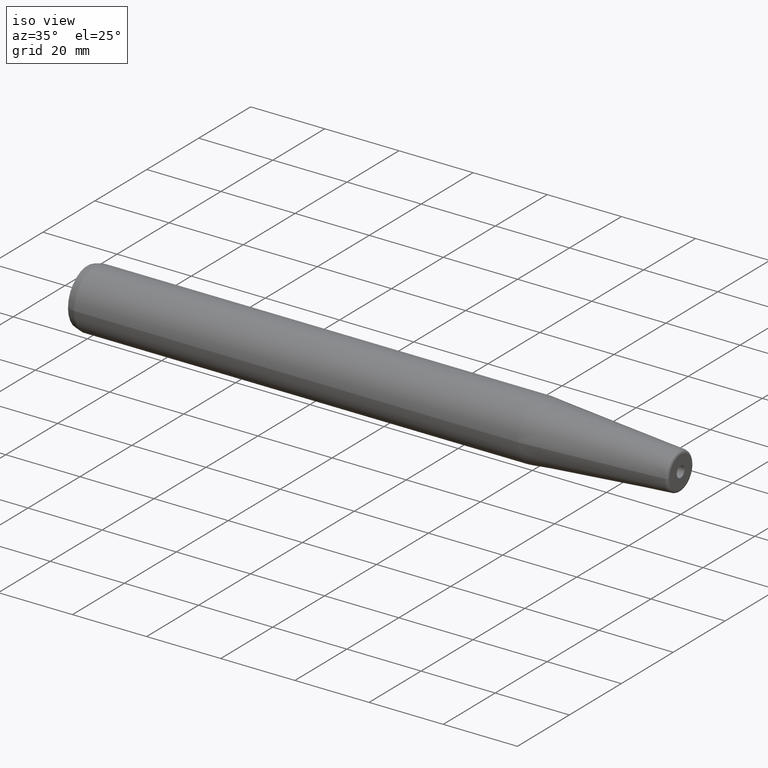
[diagram: clean part render]
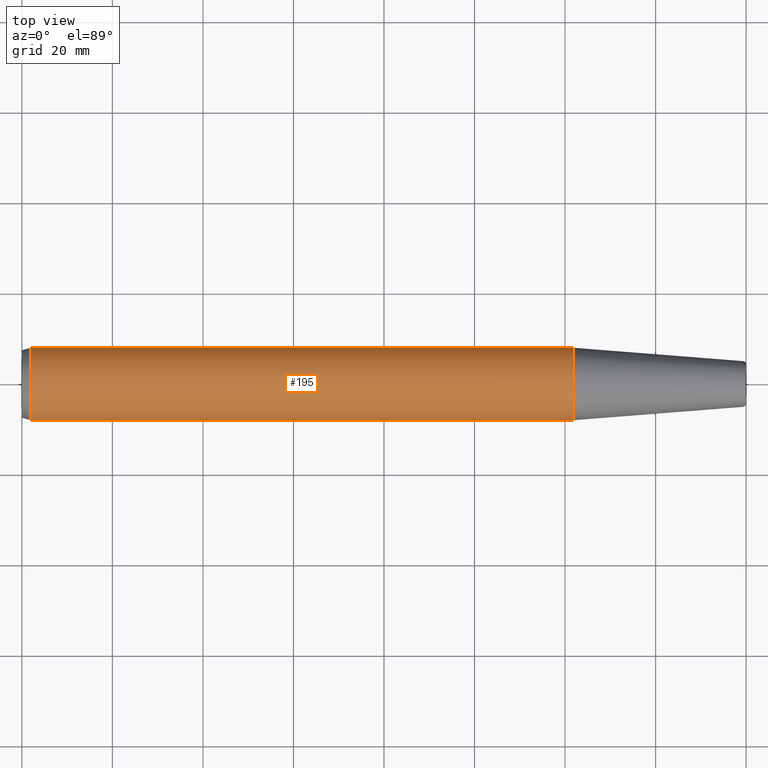
[diagram: tour spotlight — one face highlighted and labeled with its STEP entity id]
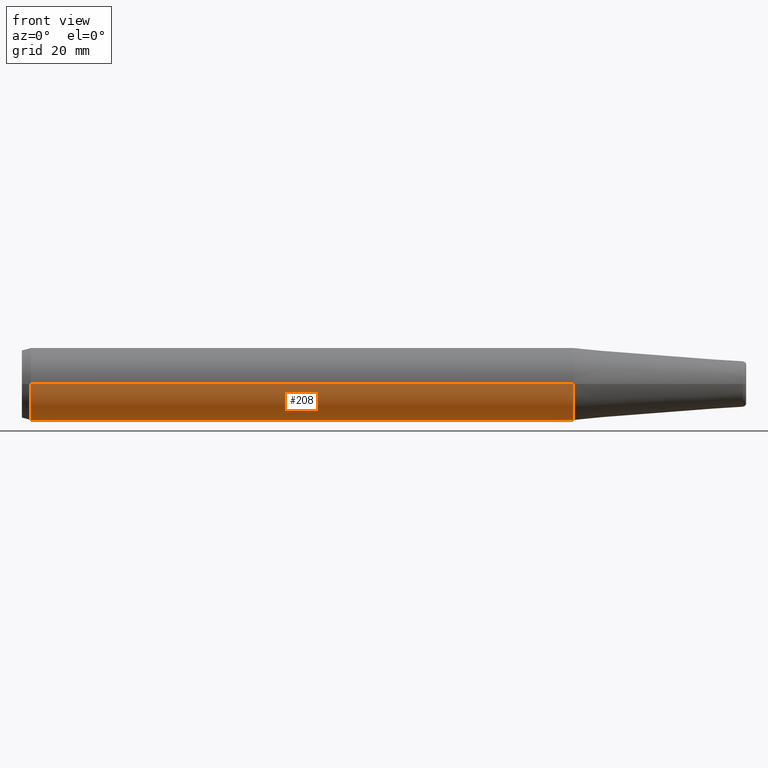
[diagram: tour spotlight — one face highlighted and labeled with its STEP entity id]
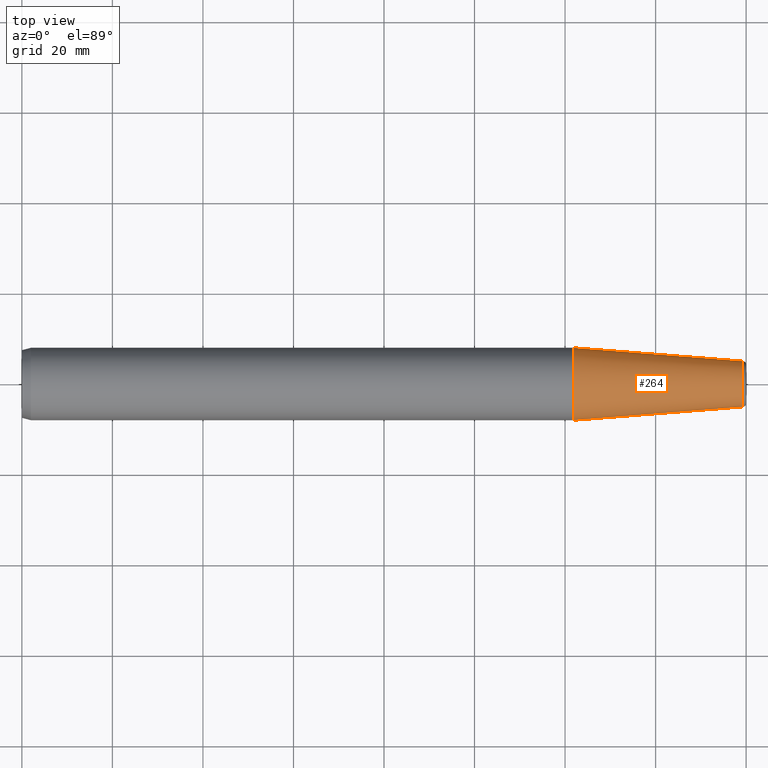
[diagram: tour spotlight — one face highlighted and labeled with its STEP entity id]
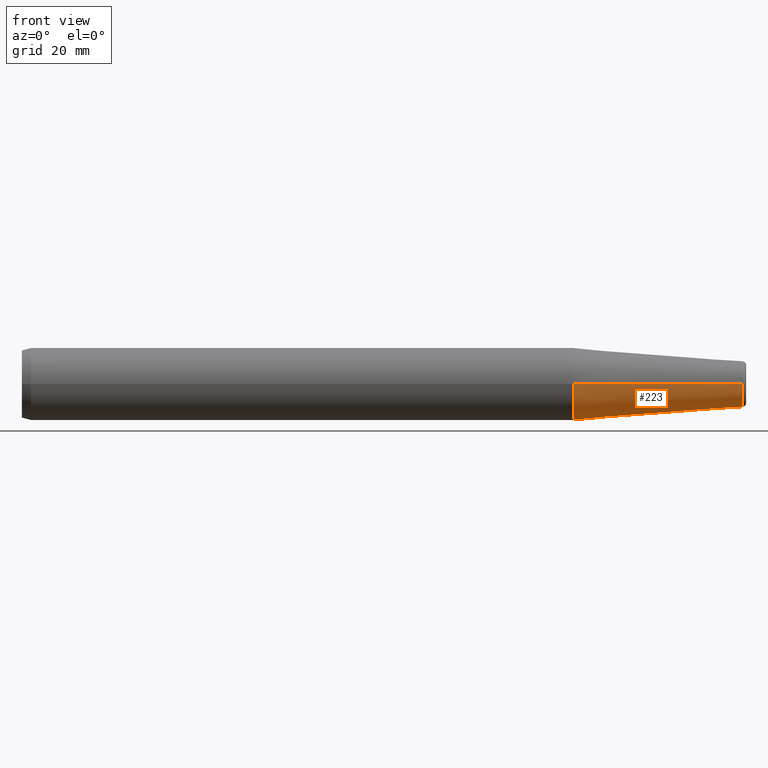
[diagram: tour spotlight — one face highlighted and labeled with its STEP entity id]
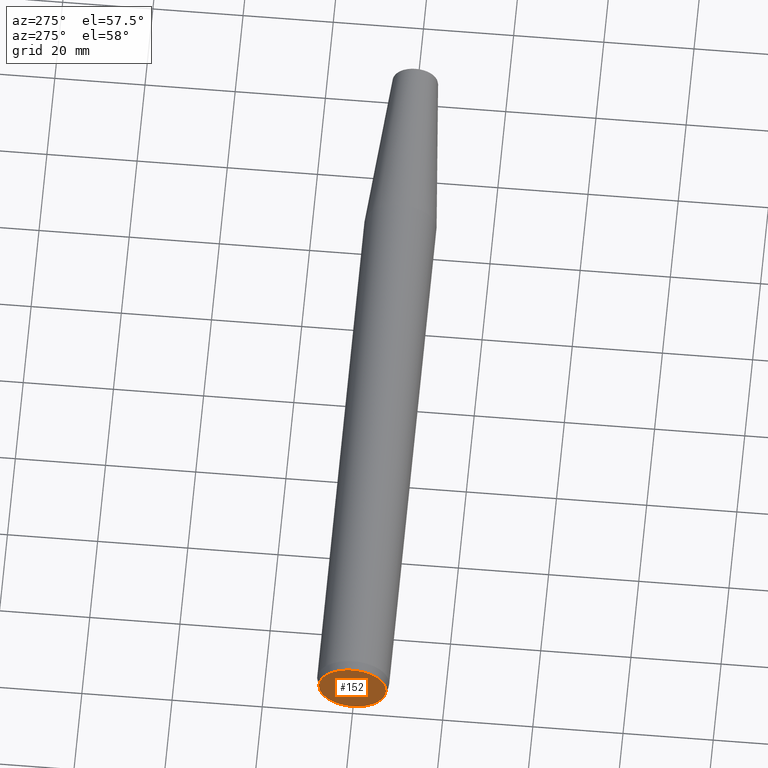
[diagram: tour spotlight — one face highlighted and labeled with its STEP entity id]
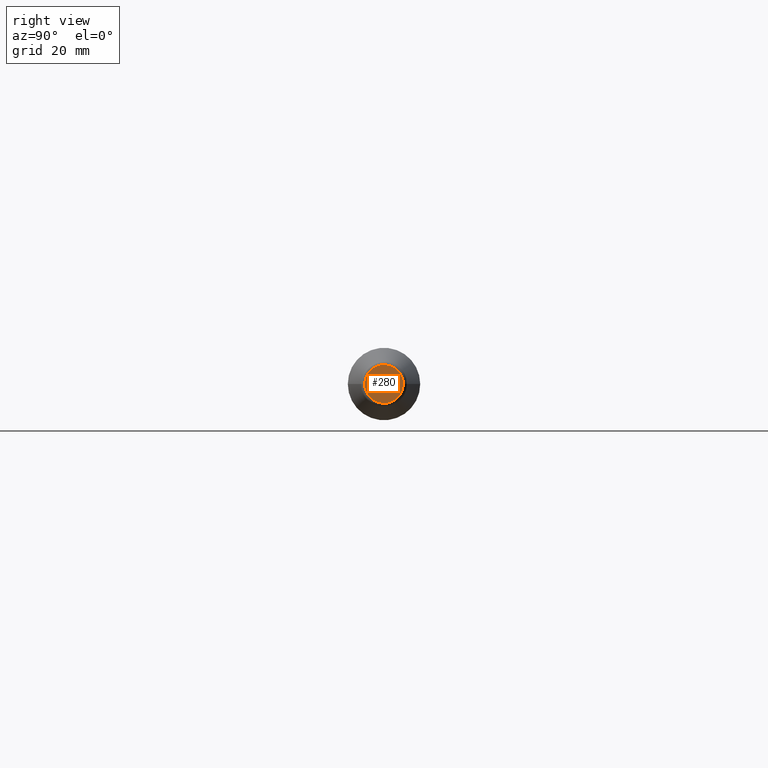
[diagram: tour spotlight — one face highlighted and labeled with its STEP entity id]
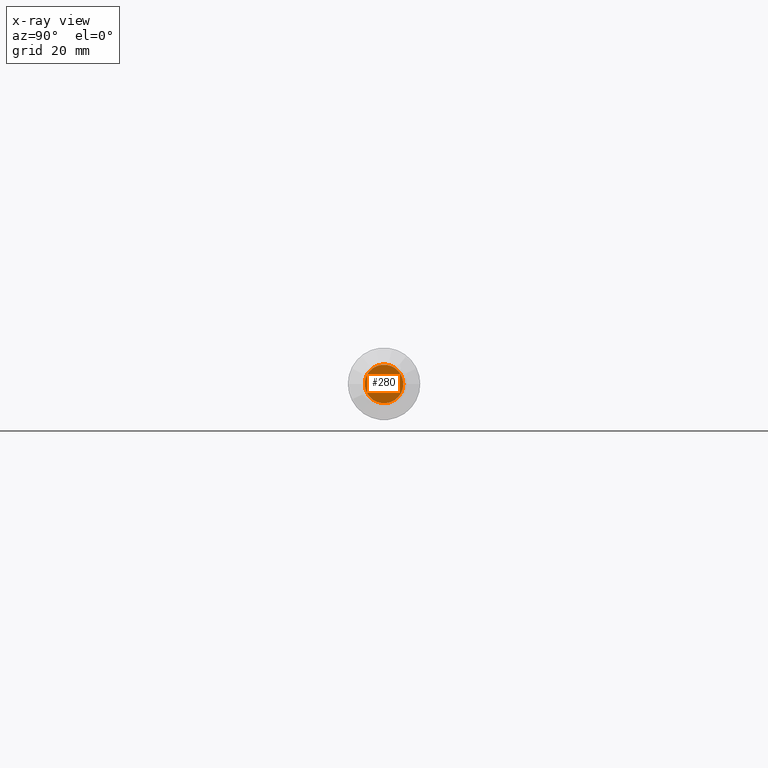
[diagram: x-ray of the same camera — body ghosted, this tour face saturated]
A machine part: a face-by-face anatomy tour. The part has 13 B-rep faces; the first image is the clean iso view, then the 6 largest visible faces are spotlighted one at a time (largest first), each with its STEP entity span.

Face 1 — top view, entity #195. In plain terms, the highlighted cylindrical surface (edge-blend (fillet) strip) has radius 8 mm, axis along (1, 0, 0).
Definition (entity closure, byte-faithful):
#19=CARTESIAN_POINT('',(2.E0,0.E0,0.E0));
#20=DIRECTION('',(-1.E0,0.E0,0.E0));
#21=DIRECTION('',(0.E0,-1.E0,0.E0));
#22=AXIS2_PLACEMENT_3D('',#19,#20,#21);
#24=CARTESIAN_POINT('',(1.218813857915E2,0.E0,0.E0));
#25=DIRECTION('',(1.E0,0.E0,0.E0));
#26=DIRECTION('',(0.E0,1.E0,0.E0));
#27=AXIS2_PLACEMENT_3D('',#24,#25,#26);
#34=DIRECTION('',(-1.E0,1.276256442345E-12,1.520143025202E-11));
#35=VECTOR('',#34,1.198813857920E2);
#36=CARTESIAN_POINT('',(1.218813857915E2,-8.E0,0.E0));
#37=LINE('',#36,#35);
#43=DIRECTION('',(-1.E0,-1.276256442345E-12,-1.520143599952E-11));
#44=VECTOR('',#43,1.198813857920E2);
#45=CARTESIAN_POINT('',(1.218813857915E2,8.E0,0.E0));
#46=LINE('',#45,#44);
#113=CARTESIAN_POINT('',(1.218813857915E2,8.E0,0.E0));
#114=CARTESIAN_POINT('',(1.218813857915E2,-8.E0,0.E0));
#115=VERTEX_POINT('',#113);
#116=VERTEX_POINT('',#114);
#129=CARTESIAN_POINT('',(2.E0,8.E0,0.E0));
#130=CARTESIAN_POINT('',(2.E0,-8.E0,0.E0));
#131=VERTEX_POINT('',#129);
#132=VERTEX_POINT('',#130);
#181=CARTESIAN_POINT('',(-8.E0,0.E0,0.E0));
#182=DIRECTION('',(1.E0,0.E0,0.E0));
#183=DIRECTION('',(0.E0,-1.E0,0.E0));
#184=AXIS2_PLACEMENT_3D('',#181,#182,#183);
#185=CYLINDRICAL_SURFACE('',#184,8.E0);
#186=ORIENTED_EDGE('',*,*,#175,.T.);
#188=ORIENTED_EDGE('',*,*,#187,.F.);
#190=ORIENTED_EDGE('',*,*,#189,.T.);
#192=ORIENTED_EDGE('',*,*,#191,.T.);
#193=EDGE_LOOP('',(#186,#188,#190,#192));
#194=FACE_OUTER_BOUND('',#193,.F.);
#195=ADVANCED_FACE('',(#194),#185,.T.);
#23=CIRCLE('',#22,8.E0);
#28=CIRCLE('',#27,8.E0);
#175=EDGE_CURVE('',#132,#131,#23,.T.);
#187=EDGE_CURVE('',#115,#131,#46,.T.);
#189=EDGE_CURVE('',#115,#116,#28,.T.);
#191=EDGE_CURVE('',#116,#132,#37,.T.);

Face 2 — front view, entity #208. In plain terms, the highlighted cylindrical surface (edge-blend (fillet) strip) has radius 8 mm, axis along (1, 0, 0).
Definition (entity closure, byte-faithful):
#29=CARTESIAN_POINT('',(2.E0,0.E0,0.E0));
#30=DIRECTION('',(-1.E0,0.E0,0.E0));
#31=DIRECTION('',(0.E0,1.E0,0.E0));
#32=AXIS2_PLACEMENT_3D('',#29,#30,#31);
#34=DIRECTION('',(-1.E0,1.276256442345E-12,1.520143025202E-11));
#35=VECTOR('',#34,1.198813857920E2);
#36=CARTESIAN_POINT('',(1.218813857915E2,-8.E0,0.E0));
#37=LINE('',#36,#35);
#38=CARTESIAN_POINT('',(1.218813857915E2,0.E0,0.E0));
#39=DIRECTION('',(-1.E0,0.E0,0.E0));
#40=DIRECTION('',(0.E0,1.E0,0.E0));
#41=AXIS2_PLACEMENT_3D('',#38,#39,#40);
#43=DIRECTION('',(-1.E0,-1.276256442345E-12,-1.520143599952E-11));
#44=VECTOR('',#43,1.198813857920E2);
#45=CARTESIAN_POINT('',(1.218813857915E2,8.E0,0.E0));
#46=LINE('',#45,#44);
#113=CARTESIAN_POINT('',(1.218813857915E2,8.E0,0.E0));
#114=CARTESIAN_POINT('',(1.218813857915E2,-8.E0,0.E0));
#115=VERTEX_POINT('',#113);
#116=VERTEX_POINT('',#114);
#129=CARTESIAN_POINT('',(2.E0,8.E0,0.E0));
#130=CARTESIAN_POINT('',(2.E0,-8.E0,0.E0));
#131=VERTEX_POINT('',#129);
#132=VERTEX_POINT('',#130);
#196=CARTESIAN_POINT('',(-8.E0,0.E0,0.E0));
#197=DIRECTION('',(1.E0,0.E0,0.E0));
#198=DIRECTION('',(0.E0,-1.E0,0.E0));
#199=AXIS2_PLACEMENT_3D('',#196,#197,#198);
#200=CYLINDRICAL_SURFACE('',#199,8.E0);
#201=ORIENTED_EDGE('',*,*,#161,.T.);
#202=ORIENTED_EDGE('',*,*,#191,.F.);
#204=ORIENTED_EDGE('',*,*,#203,.F.);
#205=ORIENTED_EDGE('',*,*,#187,.T.);
#206=EDGE_LOOP('',(#201,#202,#204,#205));
#207=FACE_OUTER_BOUND('',#206,.F.);
#208=ADVANCED_FACE('',(#207),#200,.T.);
#33=CIRCLE('',#32,8.E0);
#42=CIRCLE('',#41,8.E0);
#161=EDGE_CURVE('',#131,#132,#33,.T.);
#187=EDGE_CURVE('',#115,#131,#46,.T.);
#191=EDGE_CURVE('',#116,#132,#37,.T.);
#203=EDGE_CURVE('',#115,#116,#42,.T.);

Face 3 — top view, entity #264. In plain terms, the highlighted conical surface has half-angle 4.5 deg.
Definition (entity closure, byte-faithful):
#24=CARTESIAN_POINT('',(1.218813857915E2,0.E0,0.E0));
#25=DIRECTION('',(1.E0,0.E0,0.E0));
#26=DIRECTION('',(0.E0,1.E0,0.E0));
#27=AXIS2_PLACEMENT_3D('',#24,#25,#26);
#52=DIRECTION('',(-9.969173337331E-1,7.845909572784E-2,7.746510072684E-13));
#53=VECTOR('',#52,3.749697213622E1);
#54=CARTESIAN_POINT('',(1.592627672766E2,5.058021473660E0,-2.904608751740E-11));
#55=LINE('',#54,#53);
#56=DIRECTION('',(-9.969173337331E-1,-7.845909572784E-2,-7.745870130500E-13));
#57=VECTOR('',#56,3.749697213622E1);
#58=CARTESIAN_POINT('',(1.592627672766E2,-5.058021473660E0,2.904368792798E-11));
#59=LINE('',#58,#57);
#70=CARTESIAN_POINT('',(1.592627672766E2,0.E0,0.E0));
#71=DIRECTION('',(-1.E0,0.E0,0.E0));
#72=DIRECTION('',(0.E0,-1.E0,0.E0));
#73=AXIS2_PLACEMENT_3D('',#70,#71,#72);
#113=CARTESIAN_POINT('',(1.218813857915E2,8.E0,0.E0));
#114=CARTESIAN_POINT('',(1.218813857915E2,-8.E0,0.E0));
#115=VERTEX_POINT('',#113);
#116=VERTEX_POINT('',#114);
#133=CARTESIAN_POINT('',(1.592627672766E2,5.058021473660E0,0.E0));
#134=CARTESIAN_POINT('',(1.592627672766E2,-5.058021473660E0,0.E0));
#135=VERTEX_POINT('',#133);
#136=VERTEX_POINT('',#134);
#253=CARTESIAN_POINT('',(1.405720765340E2,0.E0,0.E0));
#254=DIRECTION('',(-1.E0,0.E0,0.E0));
#255=DIRECTION('',(0.E0,1.E0,0.E0));
#256=AXIS2_PLACEMENT_3D('',#253,#254,#255);
#257=CONICAL_SURFACE('',#256,6.529010736830E0,4.5E0);
#258=ORIENTED_EDGE('',*,*,#244,.F.);
#259=ORIENTED_EDGE('',*,*,#219,.T.);
#260=ORIENTED_EDGE('',*,*,#189,.F.);
#261=ORIENTED_EDGE('',*,*,#216,.F.);
#262=EDGE_LOOP('',(#258,#259,#260,#261));
#263=FACE_OUTER_BOUND('',#262,.F.);
#264=ADVANCED_FACE('',(#263),#257,.T.);
#28=CIRCLE('',#27,8.E0);
#74=CIRCLE('',#73,5.058021473660E0);
#189=EDGE_CURVE('',#115,#116,#28,.T.);
#216=EDGE_CURVE('',#135,#115,#55,.T.);
#219=EDGE_CURVE('',#136,#116,#59,.T.);
#244=EDGE_CURVE('',#136,#135,#74,.T.);

Face 4 — front view, entity #223. In plain terms, the highlighted conical surface has half-angle 4.5 deg.
Definition (entity closure, byte-faithful):
#38=CARTESIAN_POINT('',(1.218813857915E2,0.E0,0.E0));
#39=DIRECTION('',(-1.E0,0.E0,0.E0));
#40=DIRECTION('',(0.E0,1.E0,0.E0));
#41=AXIS2_PLACEMENT_3D('',#38,#39,#40);
#47=CARTESIAN_POINT('',(1.592627672766E2,0.E0,0.E0));
#48=DIRECTION('',(-1.E0,0.E0,0.E0));
#49=DIRECTION('',(0.E0,1.E0,0.E0));
#50=AXIS2_PLACEMENT_3D('',#47,#48,#49);
#52=DIRECTION('',(-9.969173337331E-1,7.845909572784E-2,7.746510072684E-13));
#53=VECTOR('',#52,3.749697213622E1);
#54=CARTESIAN_POINT('',(1.592627672766E2,5.058021473660E0,-2.904608751740E-11));
#55=LINE('',#54,#53);
#56=DIRECTION('',(-9.969173337331E-1,-7.845909572784E-2,-7.745870130500E-13));
#57=VECTOR('',#56,3.749697213622E1);
#58=CARTESIAN_POINT('',(1.592627672766E2,-5.058021473660E0,2.904368792798E-11));
#59=LINE('',#58,#57);
#113=CARTESIAN_POINT('',(1.218813857915E2,8.E0,0.E0));
#114=CARTESIAN_POINT('',(1.218813857915E2,-8.E0,0.E0));
#115=VERTEX_POINT('',#113);
#116=VERTEX_POINT('',#114);
#133=CARTESIAN_POINT('',(1.592627672766E2,5.058021473660E0,0.E0));
#134=CARTESIAN_POINT('',(1.592627672766E2,-5.058021473660E0,0.E0));
#135=VERTEX_POINT('',#133);
#136=VERTEX_POINT('',#134);
#209=CARTESIAN_POINT('',(1.405720765340E2,0.E0,0.E0));
#210=DIRECTION('',(-1.E0,0.E0,0.E0));
#211=DIRECTION('',(0.E0,1.E0,0.E0));
#212=AXIS2_PLACEMENT_3D('',#209,#210,#211);
#213=CONICAL_SURFACE('',#212,6.529010736830E0,4.5E0);
#215=ORIENTED_EDGE('',*,*,#214,.F.);
#217=ORIENTED_EDGE('',*,*,#216,.T.);
#218=ORIENTED_EDGE('',*,*,#203,.T.);
#220=ORIENTED_EDGE('',*,*,#219,.F.);
#221=EDGE_LOOP('',(#215,#217,#218,#220));
#222=FACE_OUTER_BOUND('',#221,.F.);
#223=ADVANCED_FACE('',(#222),#213,.T.);
#42=CIRCLE('',#41,8.E0);
#51=CIRCLE('',#50,5.058021473660E0);
#203=EDGE_CURVE('',#115,#116,#42,.T.);
#214=EDGE_CURVE('',#135,#136,#51,.T.);
#216=EDGE_CURVE('',#135,#115,#55,.T.);
#219=EDGE_CURVE('',#136,#116,#59,.T.);

Face 5 — auxiliary view, entity #152. In plain terms, the highlighted planar face has unit normal (1, 0, 0).
Definition (entity closure, byte-faithful):
#1=CARTESIAN_POINT('',(0.E0,0.E0,0.E0));
#2=DIRECTION('',(-1.E0,0.E0,0.E0));
#3=DIRECTION('',(0.E0,1.E0,0.E0));
#4=AXIS2_PLACEMENT_3D('',#1,#2,#3);
#6=CARTESIAN_POINT('',(0.E0,0.E0,0.E0));
#7=DIRECTION('',(-1.E0,0.E0,0.E0));
#8=DIRECTION('',(0.E0,-1.E0,0.E0));
#9=AXIS2_PLACEMENT_3D('',#6,#7,#8);
#125=CARTESIAN_POINT('',(0.E0,7.464101615138E0,0.E0));
#126=CARTESIAN_POINT('',(0.E0,-7.464101615138E0,0.E0));
#127=VERTEX_POINT('',#125);
#128=VERTEX_POINT('',#126);
#141=CARTESIAN_POINT('',(0.E0,0.E0,0.E0));
#142=DIRECTION('',(1.E0,0.E0,0.E0));
#143=DIRECTION('',(0.E0,-1.E0,0.E0));
#144=AXIS2_PLACEMENT_3D('',#141,#142,#143);
#145=PLANE('',#144);
#147=ORIENTED_EDGE('',*,*,#146,.F.);
#149=ORIENTED_EDGE('',*,*,#148,.F.);
#150=EDGE_LOOP('',(#147,#149));
#151=FACE_OUTER_BOUND('',#150,.F.);
#152=ADVANCED_FACE('',(#151),#145,.F.);
#5=CIRCLE('',#4,7.464101615138E0);
#10=CIRCLE('',#9,7.464101615138E0);
#146=EDGE_CURVE('',#127,#128,#5,.T.);
#148=EDGE_CURVE('',#128,#127,#10,.T.);

Face 6 — right view, entity #280. An x-ray twin of the same camera follows (body ghosted, this face saturated) — the face is partly hidden behind the body. In plain terms, the highlighted planar face has unit normal (1, 0, 0).
Definition (entity closure, byte-faithful):
#75=CARTESIAN_POINT('',(1.6E2,0.E0,0.E0));
#76=DIRECTION('',(1.E0,0.E0,0.E0));
#77=DIRECTION('',(0.E0,1.E0,0.E0));
#78=AXIS2_PLACEMENT_3D('',#75,#76,#77);
#80=CARTESIAN_POINT('',(1.6E2,0.E0,0.E0));
#81=DIRECTION('',(1.E0,0.E0,0.E0));
#82=DIRECTION('',(0.E0,-1.E0,0.E0));
#83=AXIS2_PLACEMENT_3D('',#80,#81,#82);
#85=CARTESIAN_POINT('',(1.6E2,0.E0,0.E0));
#86=DIRECTION('',(-1.E0,0.E0,0.E0));
#87=DIRECTION('',(0.E0,1.E0,0.E0));
#88=AXIS2_PLACEMENT_3D('',#85,#86,#87);
#90=CARTESIAN_POINT('',(1.6E2,0.E0,0.E0));
#91=DIRECTION('',(-1.E0,0.E0,0.E0));
#92=DIRECTION('',(0.E0,-1.E0,0.E0));
#93=AXIS2_PLACEMENT_3D('',#90,#91,#92);
#121=CARTESIAN_POINT('',(1.6E2,1.5E0,0.E0));
#122=CARTESIAN_POINT('',(1.6E2,-1.5E0,0.E0));
#123=VERTEX_POINT('',#121);
#124=VERTEX_POINT('',#122);
#137=CARTESIAN_POINT('',(1.6E2,4.260487606673E0,0.E0));
#138=CARTESIAN_POINT('',(1.6E2,-4.260487606673E0,0.E0));
#139=VERTEX_POINT('',#137);
#140=VERTEX_POINT('',#138);
#265=CARTESIAN_POINT('',(1.6E2,0.E0,0.E0));
#266=DIRECTION('',(1.E0,0.E0,0.E0));
#267=DIRECTION('',(0.E0,-1.E0,0.E0));
#268=AXIS2_PLACEMENT_3D('',#265,#266,#267);
#269=PLANE('',#268);
#270=ORIENTED_EDGE('',*,*,#232,.T.);
#271=ORIENTED_EDGE('',*,*,#247,.T.);
#272=EDGE_LOOP('',(#270,#271));
#273=FACE_OUTER_BOUND('',#272,.F.);
#275=ORIENTED_EDGE('',*,*,#274,.T.);
#277=ORIENTED_EDGE('',*,*,#276,.T.);
#278=EDGE_LOOP('',(#275,#277));
#279=FACE_BOUND('',#278,.F.);
#280=ADVANCED_FACE('',(#273,#279),#269,.T.);
#79=CIRCLE('',#78,1.5E0);
#84=CIRCLE('',#83,1.5E0);
#89=CIRCLE('',#88,4.260487606673E0);
#94=CIRCLE('',#93,4.260487606673E0);
#232=EDGE_CURVE('',#139,#140,#89,.T.);
#247=EDGE_CURVE('',#140,#139,#94,.T.);
#274=EDGE_CURVE('',#123,#124,#79,.T.);
#276=EDGE_CURVE('',#124,#123,#84,.T.);